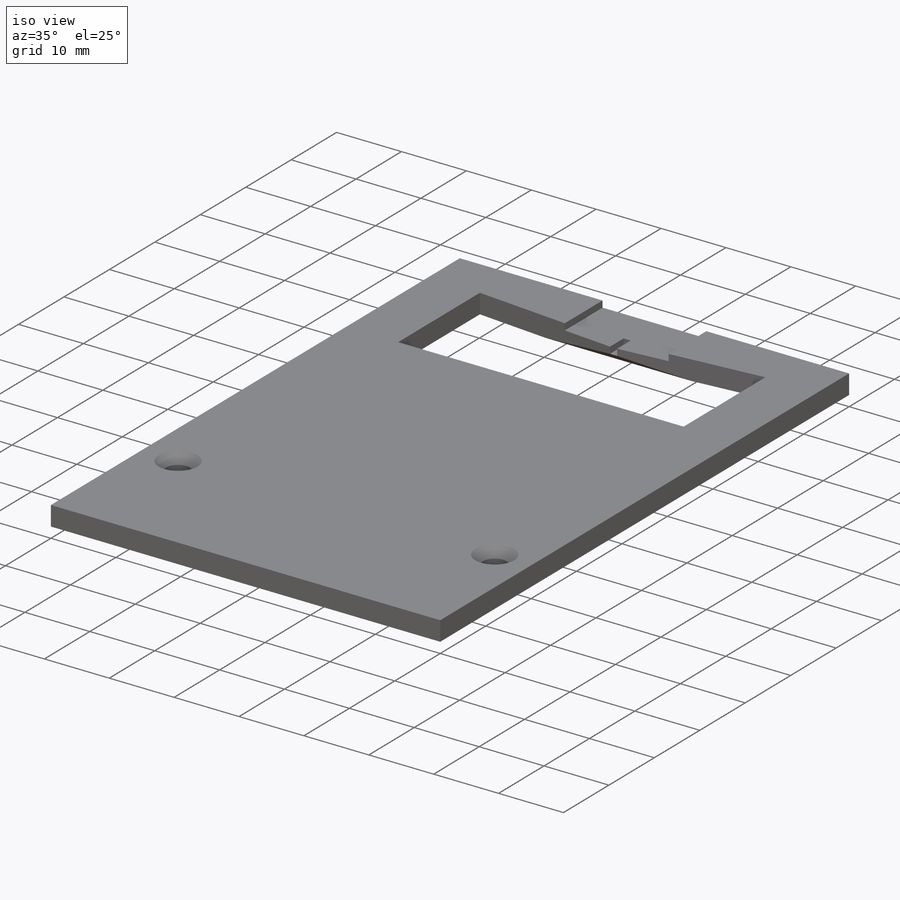
[diagram: iso view]
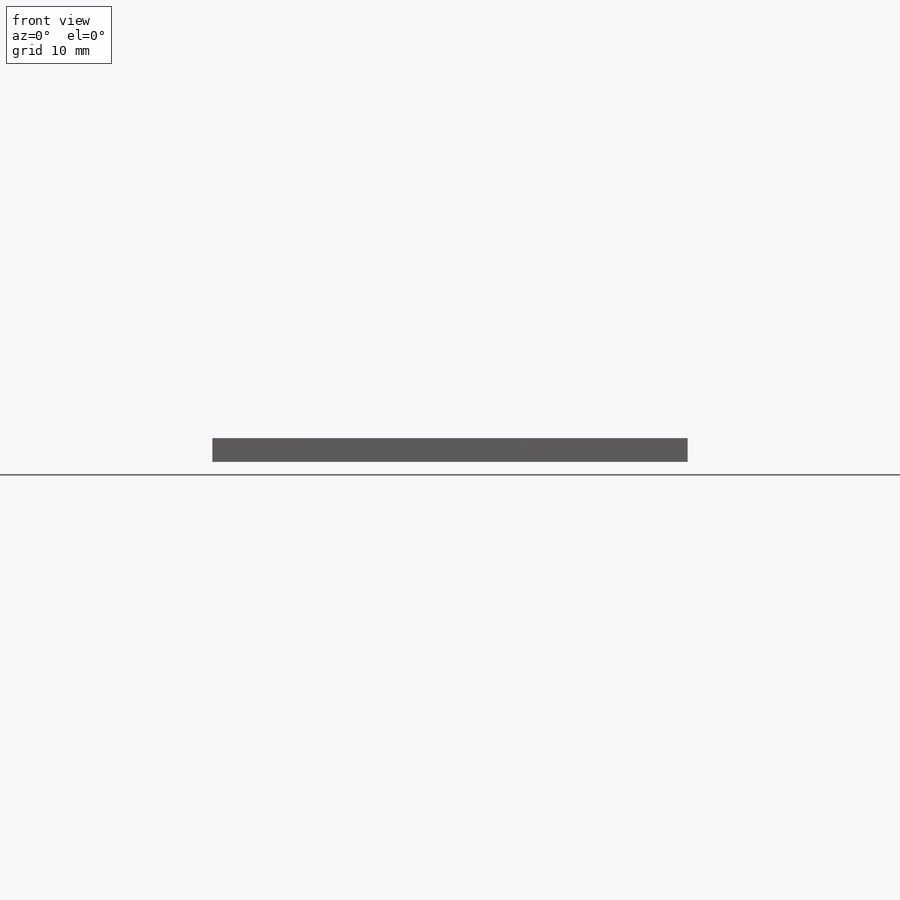
[diagram: front view]
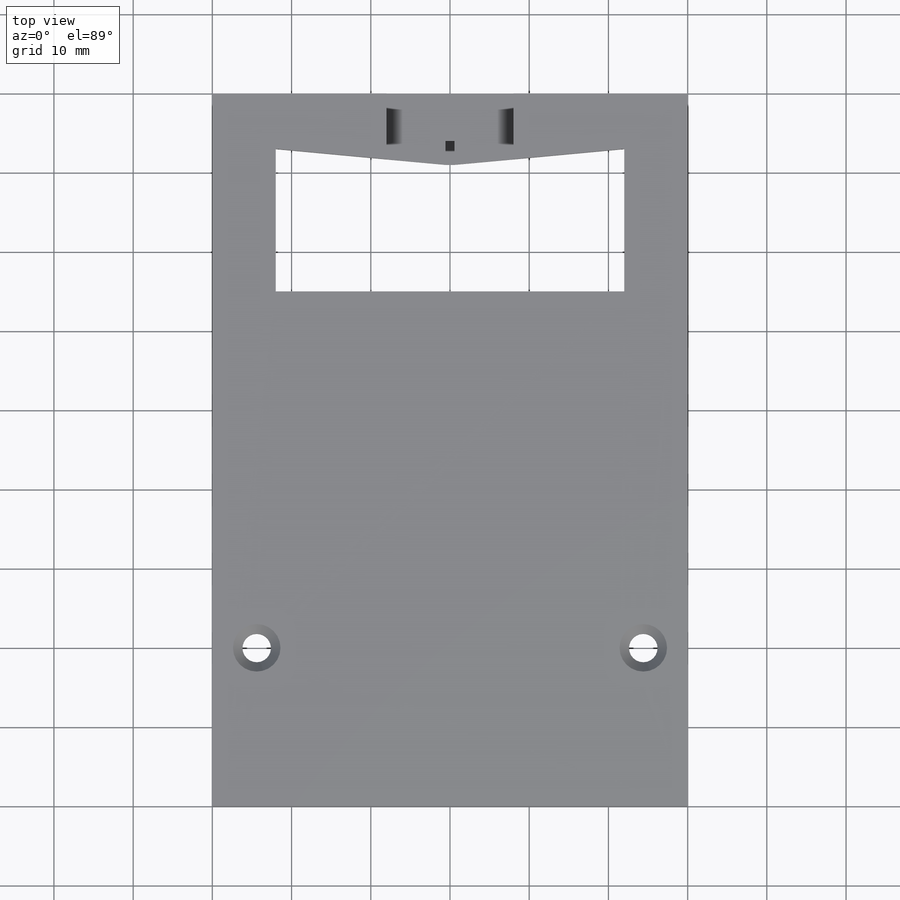
[diagram: top view]
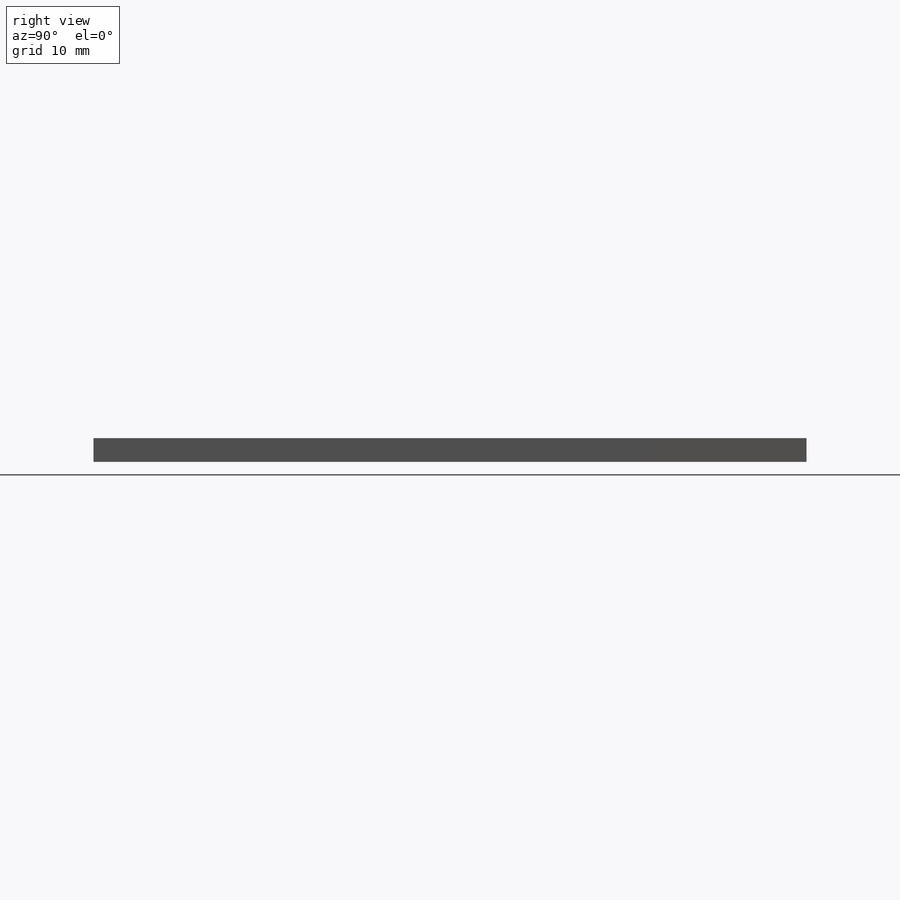
[diagram: right view]
SOLIDWORKS PART (.sldprt)
format: sldprt  version: not decoded by parser v0  size: 244,736 bytes
history: native  units: mm
features: sketch x7, cut_extrude x6, material x1, extrude x1 (+13 scaffold rows collapsed)
feature tree (28):
  scaffold x13  (default folders/planes/origin — collapsed)
  material  "Material <not specified>"
  sketch  "Sketch1"
  extrude  "Boss-Extrude1"  Depth=3mm
  sketch  "Sketch3"
  cut_extrude  "Cut-Extrude2"  Depth=1mm
  sketch  "Sketch4"
  cut_extrude  "Cut-Extrude3"  Depth=1mm
  sketch  "Sketch5"  dims[D1=2.8mm]
  cut_extrude  "Cut-Extrude4"  [1 undecoded]
  sketch  "Sketch7"  dims[D1=2.0mm]
  cut_extrude  "Cut-Extrude5"  [1 undecoded]
  sketch  "Sketch8"
  cut_extrude  "Cut-Extrude7"  [1 undecoded]
  sketch  "Sketch9"
  cut_extrude  "Cut-Extrude8"  Depth=1mm
decode coverage: 6 of 14 modeling features carry decoded parameters
note: 3 parameter values undecoded
summary: no parameter record found for 3 features
note: suppression state not decoded; provenance and decode notes live in map.json
